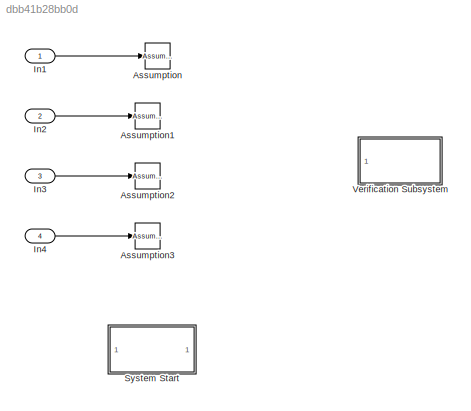
MODEL slx_dbb41b28bb0d
KIND model
CONFIG AbsTol = auto
CONFIG EnableMultiTasking = off
CONFIG FixedStep = auto
CONFIG MaxStep = auto
CONFIG MinStep = auto
CONFIG RelTol = 1e-3
CONFIG SampleTimeConstraint = Unconstrained
CONFIG SolverName = VariableStepAuto
CONFIG StartTime = 0.0
CONFIG StopTime = 10.0
BLOCK [Reference] Assumption  REF=sldvlib/Objectives and Constraints/Assumption
  AttributesFormatString = %<intervals>
  NameLocation = top
  Ports = [1, 1]
  SourceBlock = sldvlib/Objectives and Constraints/Assumption
  SourceProductBaseCode = SL
  SourceType = Design Verifier Assumption
BLOCK [Reference] Assumption1  REF=sldvlib/Objectives and Constraints/Assumption
  AttributesFormatString = %<intervals>
  NameLocation = top
  Ports = [1, 1]
  SourceBlock = sldvlib/Objectives and Constraints/Assumption
  SourceProductBaseCode = SL
  SourceType = Design Verifier Assumption
BLOCK [Reference] Assumption2  REF=sldvlib/Objectives and Constraints/Assumption
  AttributesFormatString = %<intervals>
  NameLocation = top
  Ports = [1, 1]
  SourceBlock = sldvlib/Objectives and Constraints/Assumption
  SourceProductBaseCode = SL
  SourceType = Design Verifier Assumption
BLOCK [Reference] Assumption3  REF=sldvlib/Objectives and Constraints/Assumption
  AttributesFormatString = %<intervals>
  NameLocation = top
  Ports = [1, 1]
  SourceBlock = sldvlib/Objectives and Constraints/Assumption
  SourceProductBaseCode = SL
  SourceType = Design Verifier Assumption
BLOCK [Inport] In1
BLOCK [Inport] In2
  Port = 2
BLOCK [Inport] In3
  Port = 3
BLOCK [Inport] In4
  Port = 4
BLOCK [SubSystem] System Start
  CopyFcn = cccopyfcn(gcb)
  OpenFcn = ccopenfcn('System Start Function')
  Ports = []
  RequestExecContextInheritance = off
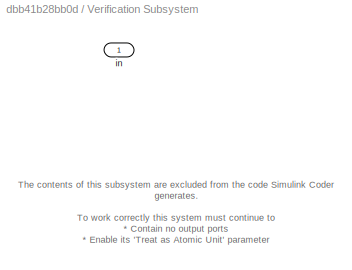
BLOCK [SubSystem] Verification Subsystem
  CopyFcn = sldvsubsys('copy');
  DisableCoverage = on
  LoadFcn = sldvsubsys('check')
  OpenFcn = open_system(gcb,'force');
  Ports = [1]
  PreSaveFcn = set_param(gcb,'SimViewingDevice','on');\nsldvsubsys('check');
  RequestExecContextInheritance = off
  SimViewingDevice = on
  Tag = VerificationSubsystem
  TreatAsAtomicUnit = on
BLOCK [Inport] Verification Subsystem/in
ANNOTATION Verification Subsystem: The contents of this subsystem are excluded from the code Simulink Coder generates. To work correctly this system must continue to * Contain no output ports * Enable its 'Treat as Atomic Unit' parameter * Specify its 'Mask type' parameter as "VerificationSubsystem"
LINE In1:1 -> Assumption:1
LINE In2:1 -> Assumption1:1
LINE In3:1 -> Assumption2:1
LINE In4:1 -> Assumption3:1
